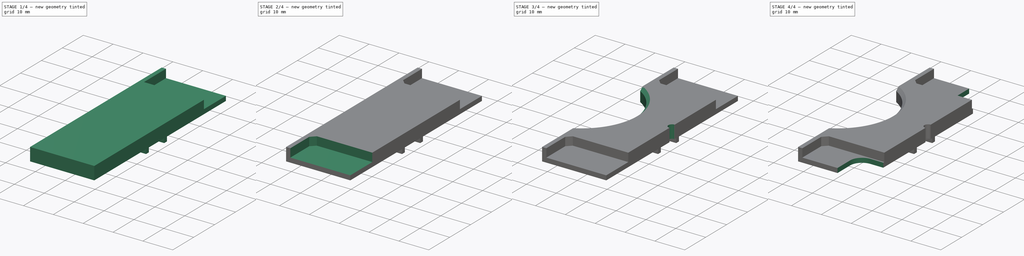
[diagram: build sequence overview — one tinted view per stage of 4, left to right]
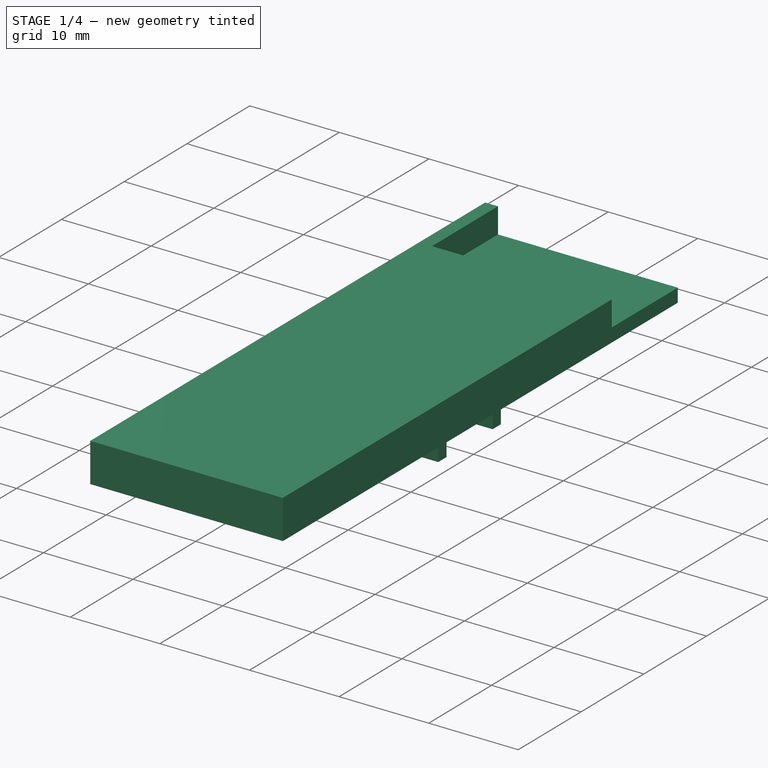
[diagram: stage 1 of 4 — iso view after this stage's code; geometry added in this stage tinted green]
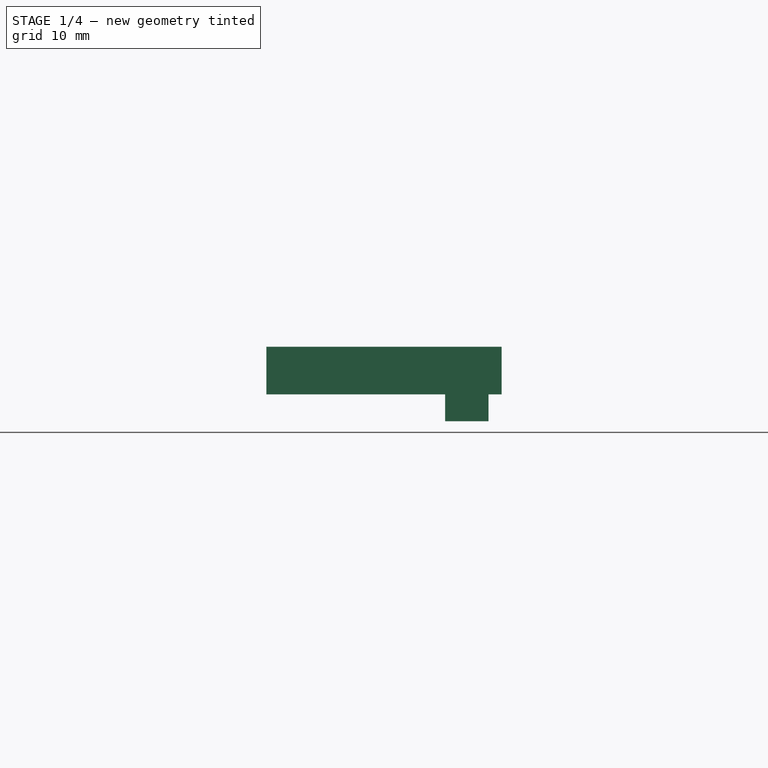
[diagram: stage 1 of 4 — front view after this stage's code; geometry added in this stage tinted green]
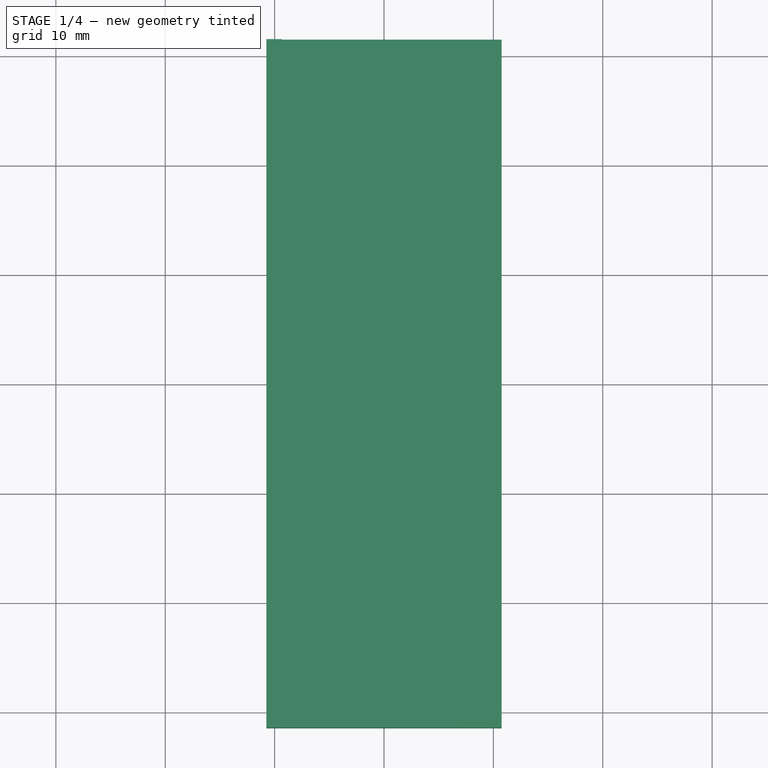
[diagram: stage 1 of 4 — top view after this stage's code; geometry added in this stage tinted green]
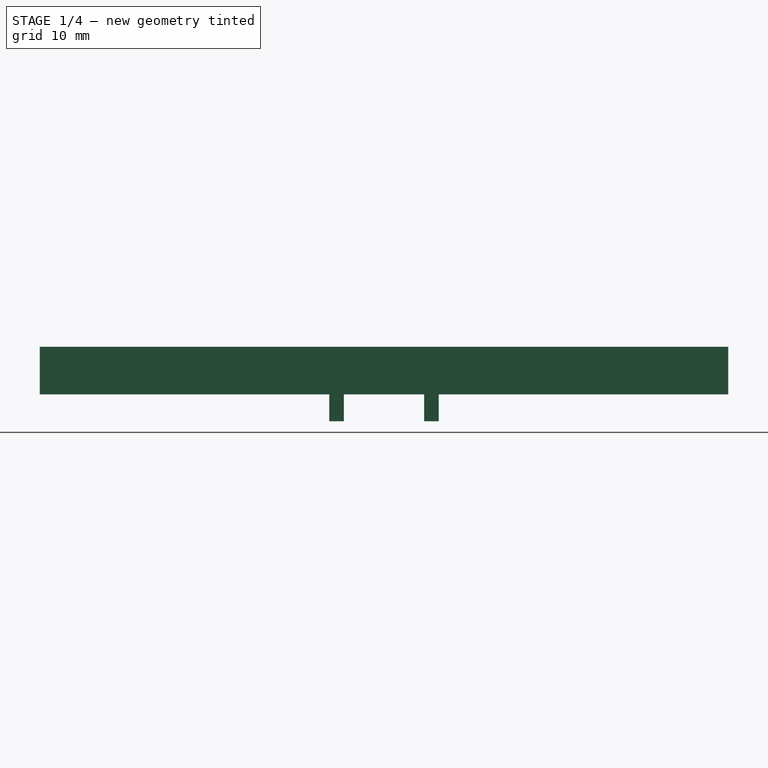
[diagram: stage 1 of 4 — right view after this stage's code; geometry added in this stage tinted green]
FCSTD DOCUMENT  (FreeCAD 0.19R24291 (Git))
Label: F2-1
License: All rights reserved
LicenseURL: http://en.wikipedia.org/wiki/All_rights_reserved
objects: Sketcher::SketchObject×6, PartDesign::Pocket×4, PartDesign::Mirrored×3, PartDesign::Chamfer×3, PartDesign::Pad×2, PartDesign::Fillet×2, PartDesign::Body×1
note: 32 computed .brp shape members not serialized (recipe doc carries the construction recipe); baked Part::Feature solids carry a one-line shape summary decoded from their .brp

FEATURE [Sketcher::SketchObject] Sketch
  FullyConstrained = true
  MapMode = 5
  Support = -> [XY_Plane]
  sketch-geometry (4):
    g0: LineSegment StartX=-10.75 StartY=31.475 StartZ=0 EndX=10.75 EndY=31.475 EndZ=0
    g1: LineSegment StartX=10.75 StartY=31.475 StartZ=0 EndX=10.75 EndY=-31.475 EndZ=0
    g2: LineSegment StartX=10.75 StartY=-31.475 StartZ=0 EndX=-10.75 EndY=-31.475 EndZ=0
    g3: LineSegment StartX=-10.75 StartY=-31.475 StartZ=0 EndX=-10.75 EndY=31.475 EndZ=0
  constraints (10):
    c: Coincident(g0,g1)
    c: Coincident(g1,g2)
    c: Coincident(g2,g3)
    c: Coincident(g3,g0)
    c: Horizontal(g2)
    c: Vertical(g1)
    c: Symmetric(g0,g0,g-2)
    c: Symmetric(g0,g2,g-1)
    c: Distance(g1) = 62.95
    c: Distance(g0) = 21.5
FEATURE [PartDesign::Pad] Pad
  Direction = (1,1,1)
  Length = 4.36
  Length2 = 100
  Profile = -> Sketch
  Type = 0
FEATURE [Sketcher::SketchObject] Sketch001
  ExternalGeometry = -> [Pad]
  FullyConstrained = true
  MapMode = 5
  Support = -> [XY_Plane]
  sketch-geometry (4):
    g0: LineSegment StartX=5.59 StartY=5 StartZ=0 EndX=9.55 EndY=5 EndZ=0
    g1: LineSegment StartX=9.55 StartY=5 StartZ=0 EndX=9.55 EndY=3.67 EndZ=0
    g2: LineSegment StartX=9.55 StartY=3.67 StartZ=0 EndX=5.59 EndY=3.67 EndZ=0
    g3: LineSegment StartX=5.59 StartY=3.67 StartZ=0 EndX=5.59 EndY=5 EndZ=0
  constraints (12):
    c: Coincident(g0,g1)
    c: Coincident(g1,g2)
    c: Coincident(g2,g3)
    c: Coincident(g3,g0)
    c: Horizontal(g0)
    c: Horizontal(g2)
    c: Vertical(g1)
    c: Vertical(g3)
    c: Distance(g2) = 3.96
    c: Distance(g1) = 1.33
    c: DistanceY(g-1,g0) = 5
    c: Distance(g0,g-3) = 1.2
FEATURE [PartDesign::Pad] Pad001
  BaseFeature = -> Pad
  Direction = (1,1,1)
  Length = 2.46
  Length2 = 100
  Profile = -> Sketch001
  Reversed = true
  Type = 0
FEATURE [PartDesign::Mirrored] Mirrored
  BaseFeature = -> Pad001
  MirrorPlane = -> Sketch001 [H_Axis]
  Originals = -> [Pad001]
FEATURE [Sketcher::SketchObject] Sketch002
  ExternalGeometry = -> [Mirrored]
  FullyConstrained = false
  MapMode = 5
  Placement = pos=(0,0,4.36) rot=(0,0,1;0rad)
  Support = -> [Mirrored]
  sketch-geometry (4):
    g0: LineSegment StartX=-9.32 StartY=36.2903 StartZ=0 EndX=31.0862 EndY=36.2903 EndZ=0
    g1: LineSegment StartX=31.0862 StartY=36.2903 StartZ=0 EndX=31.0862 EndY=20.95 EndZ=0
    g2: LineSegment StartX=31.0862 StartY=20.95 StartZ=0 EndX=-9.32 EndY=20.95 EndZ=0
    g3: LineSegment StartX=-9.32 StartY=20.95 StartZ=0 EndX=-9.32 EndY=36.2903 EndZ=0
  constraints (10):
    c: Coincident(g0,g1)
    c: Coincident(g1,g2)
    c: Coincident(g2,g3)
    c: Coincident(g3,g0)
    c: Horizontal(g0)
    c: Horizontal(g2)
    c: Vertical(g1)
    c: Vertical(g3)
    c: Distance(g0,g-3) = 1.43
    c: Distance(g1,g-4) = 10.525
FEATURE [PartDesign::Pocket] Pocket
  BaseFeature = -> Mirrored
  Length = 2.84
  Length2 = 100
  Profile = -> Sketch002
  Type = 0
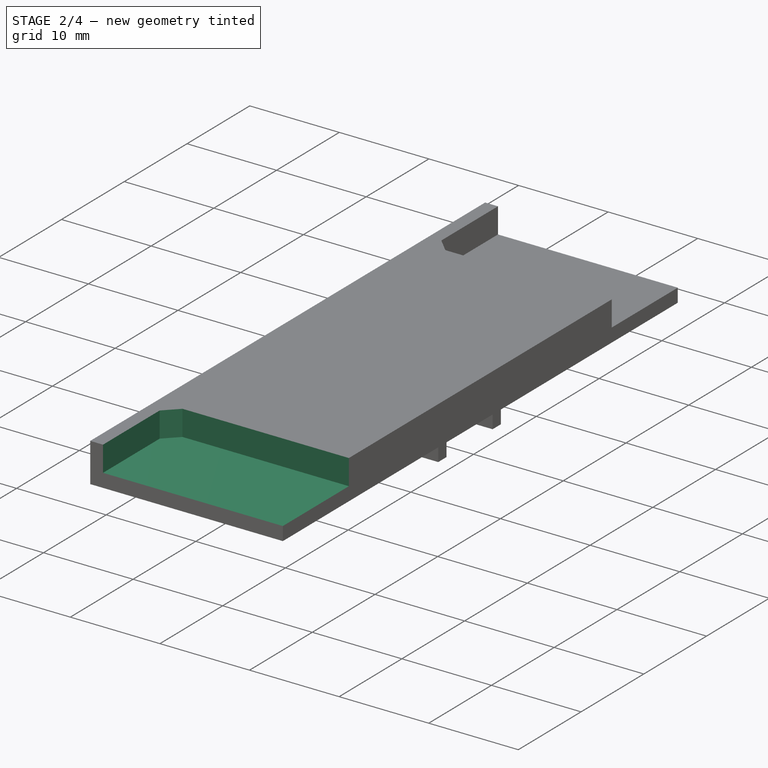
[diagram: stage 2 of 4 — iso view after this stage's code; geometry added in this stage tinted green]
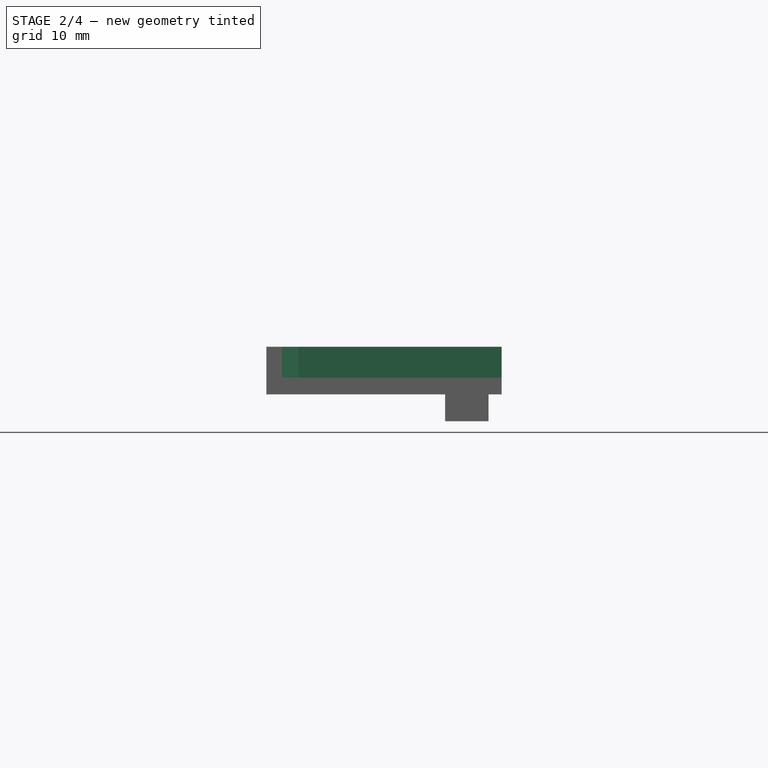
[diagram: stage 2 of 4 — front view after this stage's code; geometry added in this stage tinted green]
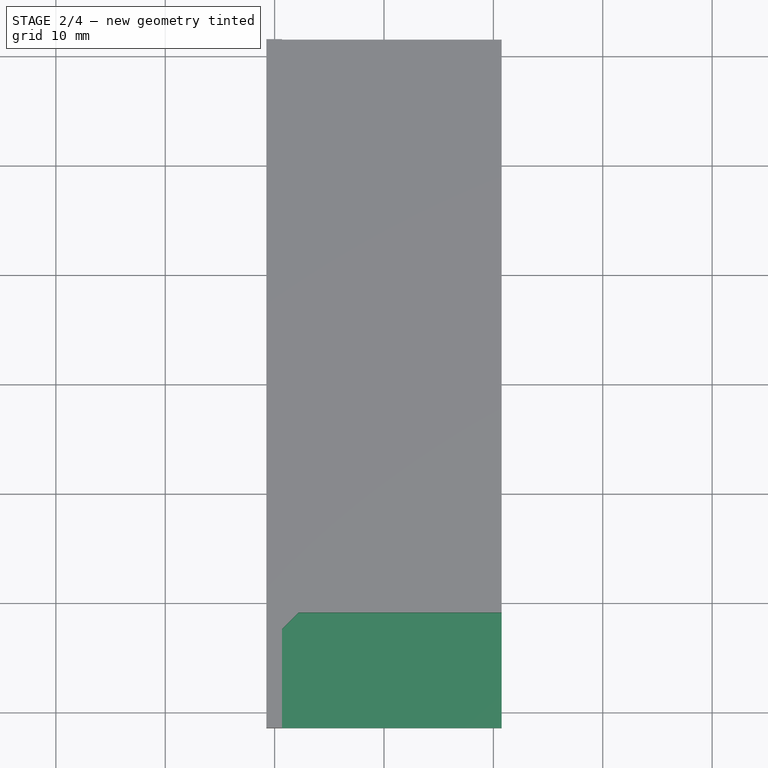
[diagram: stage 2 of 4 — top view after this stage's code; geometry added in this stage tinted green]
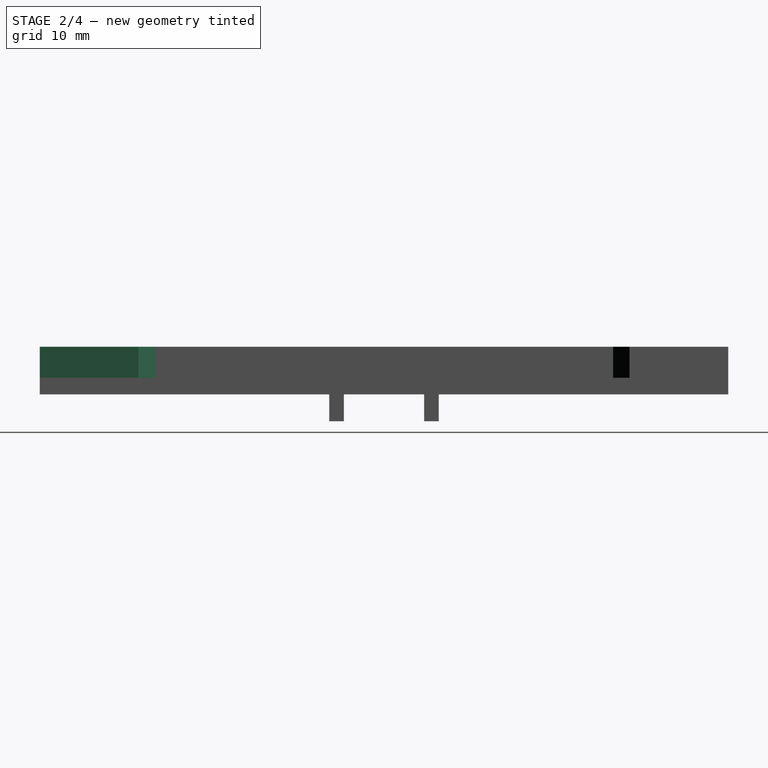
[diagram: stage 2 of 4 — right view after this stage's code; geometry added in this stage tinted green]
FEATURE [PartDesign::Chamfer] Chamfer
  Angle = 45
  Base = -> Pocket [Edge25]
  BaseFeature = -> Pocket
  ChamferType = 0
  FlipDirection = false
  Size = 1.5
  Size2 = 1
  SupportTransform = false
FEATURE [PartDesign::Mirrored] Mirrored001
  BaseFeature = -> Chamfer
  MirrorPlane = -> Sketch002 [H_Axis]
  Originals = -> [Pocket]
FEATURE [PartDesign::Chamfer] Chamfer001
  Angle = 45
  Base = -> Mirrored001 [Edge41]
  BaseFeature = -> Mirrored001
  ChamferType = 0
  FlipDirection = false
  Size = 1.5
  Size2 = 1
  SupportTransform = false
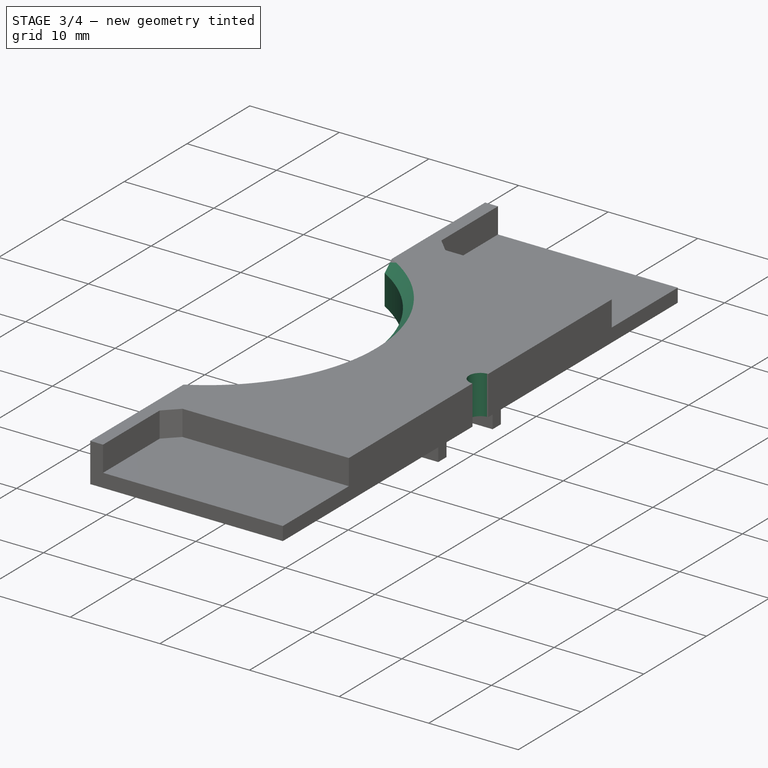
[diagram: stage 3 of 4 — iso view after this stage's code; geometry added in this stage tinted green]
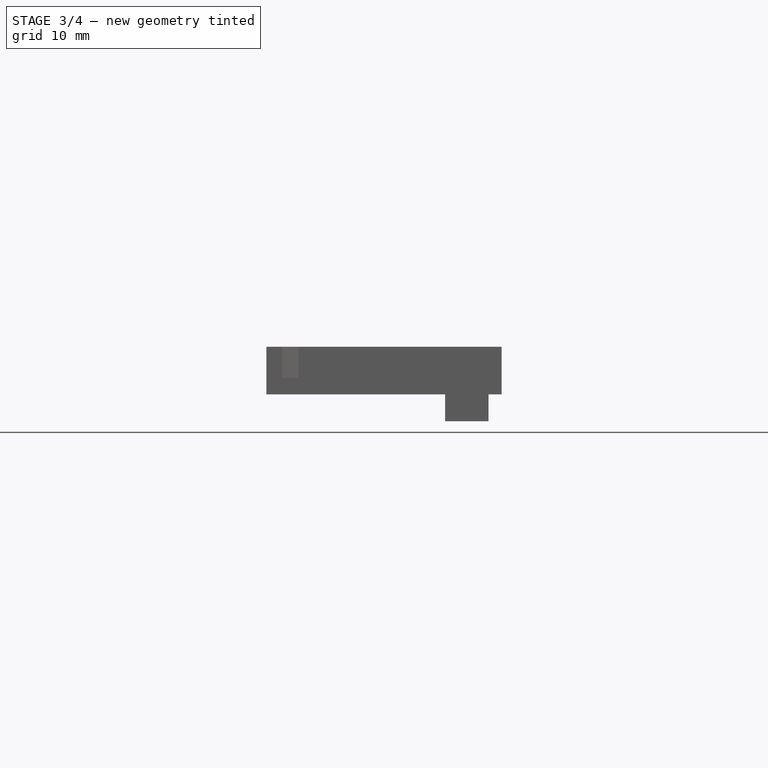
[diagram: stage 3 of 4 — front view after this stage's code; geometry added in this stage tinted green]
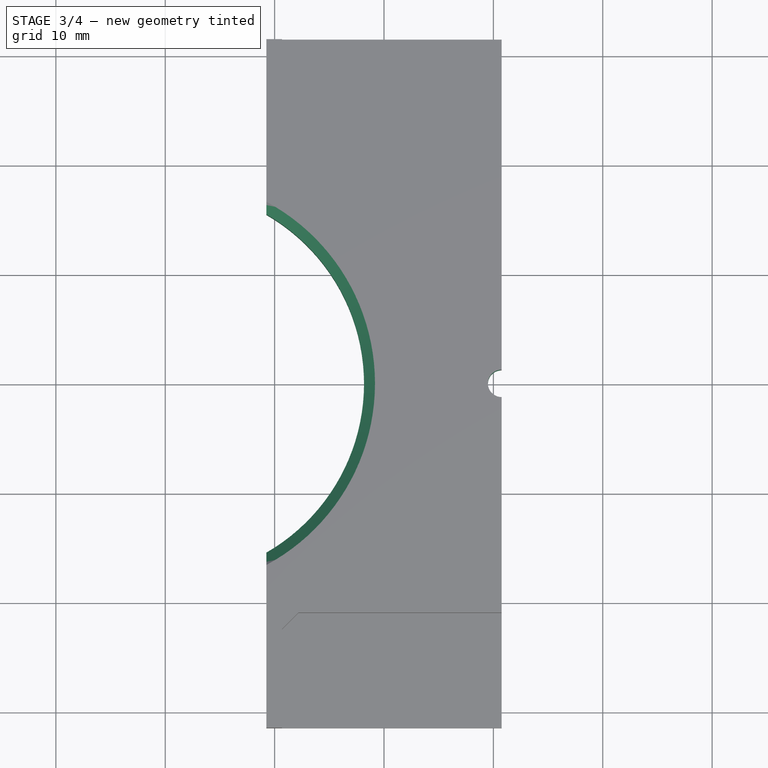
[diagram: stage 3 of 4 — top view after this stage's code; geometry added in this stage tinted green]
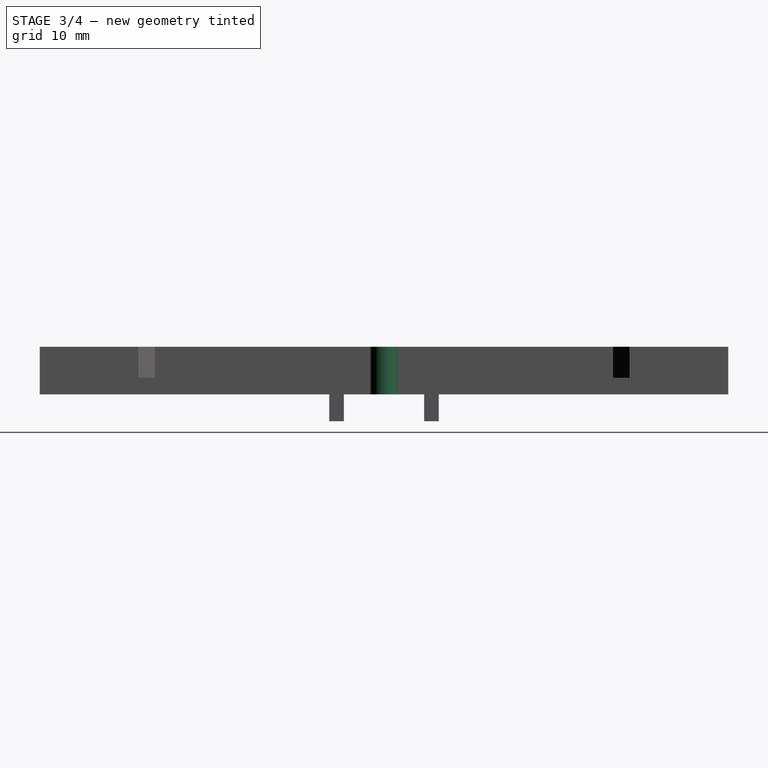
[diagram: stage 3 of 4 — right view after this stage's code; geometry added in this stage tinted green]
FEATURE [Sketcher::SketchObject] Sketch003
  ExternalGeometry = -> [Chamfer001]
  FullyConstrained = true
  MapMode = 5
  Placement = pos=(0,0,4.36) rot=(0,0,1;0rad)
  Support = -> [Chamfer001]
  sketch-geometry (1):
    g0: Circle CenterX=10.75 CenterY=0 CenterZ=0 NormalX=0 NormalY=0 NormalZ=1 AngleXU=0 Radius=1.25
  constraints (3):
    c: PointOnObject(g0,g-1)
    c: Radius(g0) = 1.25
    c: PointOnObject(g0,g-3)
FEATURE [PartDesign::Pocket] Pocket001
  BaseFeature = -> Chamfer001
  Length = 5
  Length2 = 100
  Profile = -> Sketch003
  Type = 1
FEATURE [Sketcher::SketchObject] Sketch004
  ExternalGeometry = -> [Pocket001]
  FullyConstrained = true
  MapMode = 5
  Placement = pos=(0,0,4.36) rot=(0,0,1;0rad)
  Support = -> [Pocket001]
  sketch-geometry (1):
    g0: Circle CenterX=-19.675 CenterY=0 CenterZ=0 NormalX=0 NormalY=0 NormalZ=1 AngleXU=0 Radius=17.85
  constraints (3):
    c: PointOnObject(g0,g-1)
    c: Radius(g0) = 17.85
    c: Distance(g0,g-3) = 8.925
FEATURE [PartDesign::Pocket] Pocket002
  BaseFeature = -> Pocket001
  Length = 5
  Length2 = 100
  Profile = -> Sketch004
  Type = 0
FEATURE [PartDesign::Chamfer] Chamfer002
  Angle = 45
  Base = -> Pocket002 [Edge10,Edge11]
  BaseFeature = -> Pocket002
  ChamferType = 0
  FlipDirection = false
  Size = 1
  Size2 = 1
  SupportTransform = false
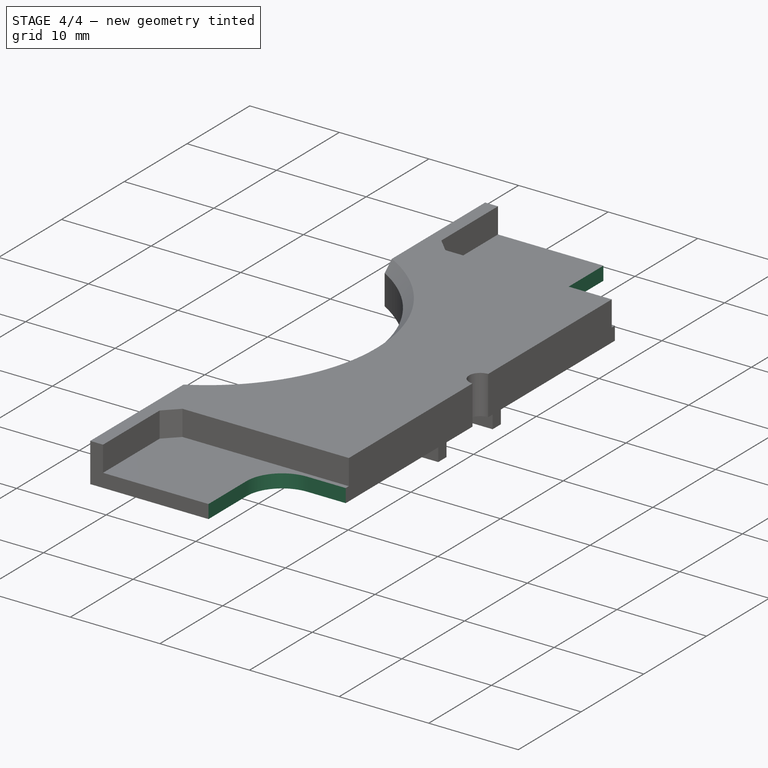
[diagram: stage 4 of 4 — iso view after this stage's code; geometry added in this stage tinted green]
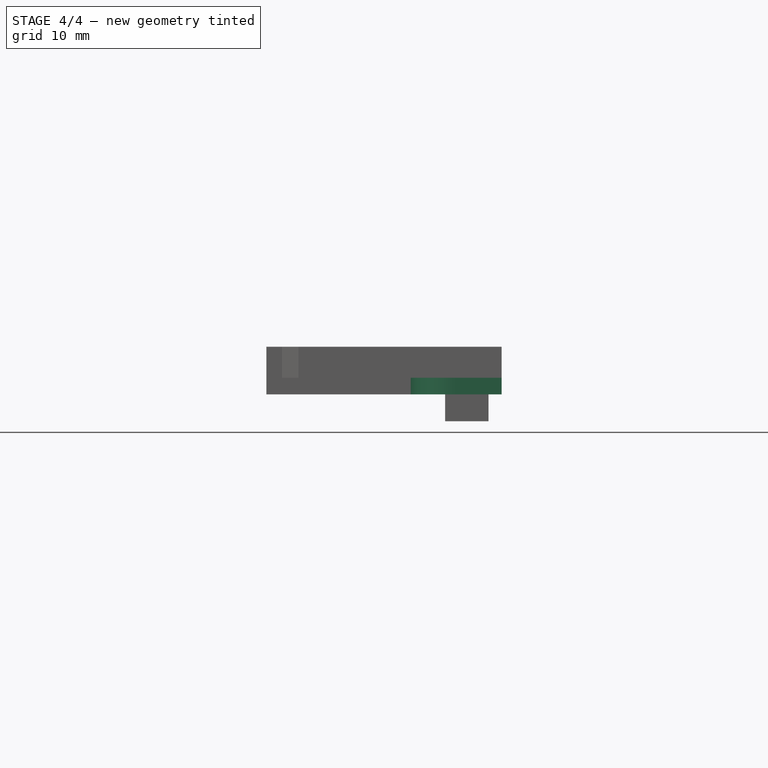
[diagram: stage 4 of 4 — front view after this stage's code; geometry added in this stage tinted green]
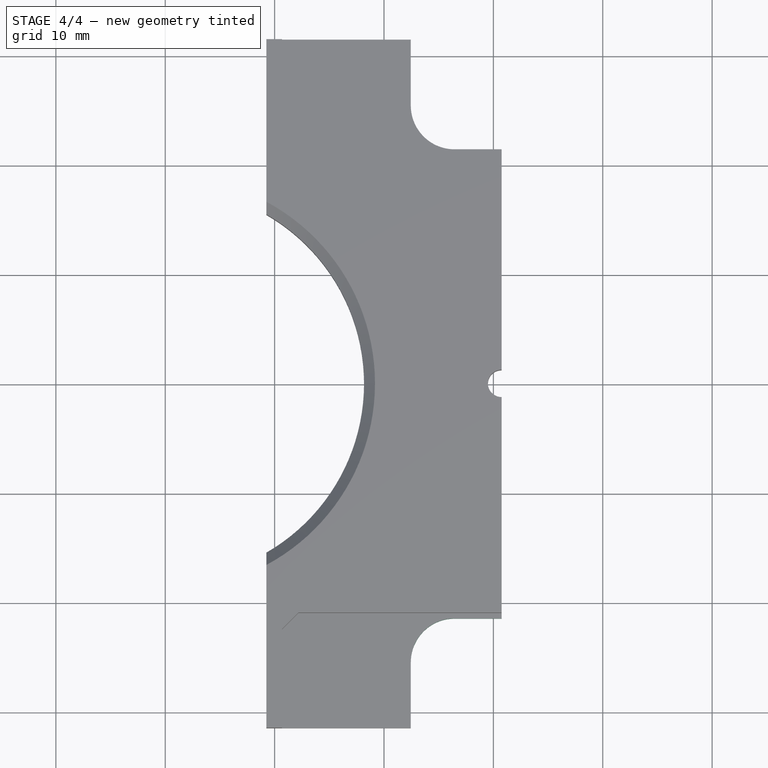
[diagram: stage 4 of 4 — top view after this stage's code; geometry added in this stage tinted green]
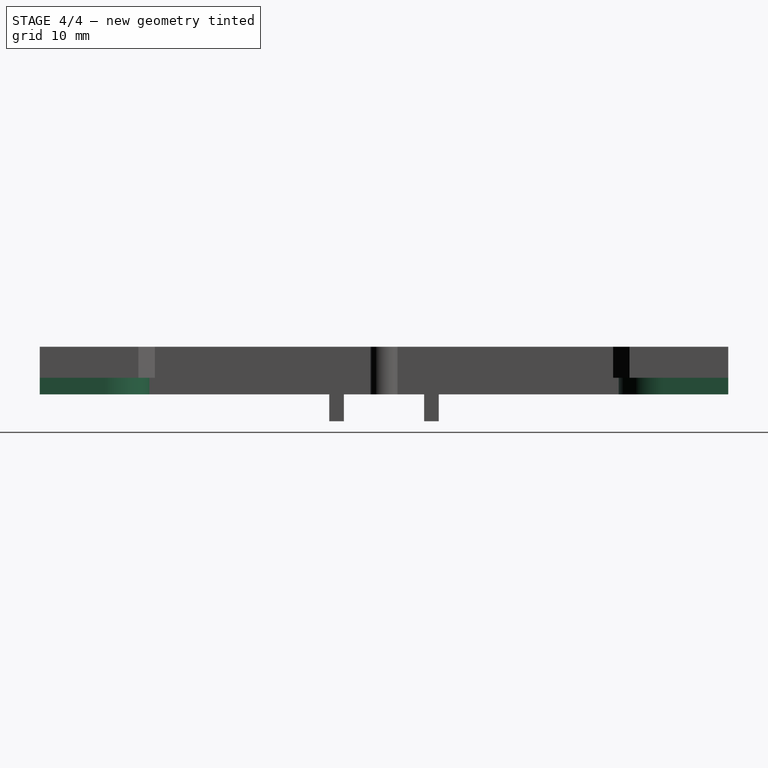
[diagram: stage 4 of 4 — right view after this stage's code; geometry added in this stage tinted green]
FEATURE [Sketcher::SketchObject] Sketch005
  ExternalGeometry = -> [Chamfer002]
  FullyConstrained = false
  MapMode = 5
  Placement = pos=(0,0,1.52) rot=(0,0,1;0rad)
  Support = -> [Chamfer002]
  sketch-geometry (4):
    g0: LineSegment StartX=2.45 StartY=36.3201 StartZ=0 EndX=29.1157 EndY=36.3201 EndZ=0
    g1: LineSegment StartX=29.1157 StartY=36.3201 StartZ=0 EndX=29.1157 EndY=21.45 EndZ=0
    g2: LineSegment StartX=29.1157 StartY=21.45 StartZ=0 EndX=2.45 EndY=21.45 EndZ=0
    g3: LineSegment StartX=2.45 StartY=21.45 StartZ=0 EndX=2.45 EndY=36.3201 EndZ=0
  constraints (10):
    c: Coincident(g0,g1)
    c: Coincident(g1,g2)
    c: Coincident(g2,g3)
    c: Coincident(g3,g0)
    c: Horizontal(g0)
    c: Horizontal(g2)
    c: Vertical(g1)
    c: Vertical(g3)
    c: Distance(g0,g-3) = 13.2
    c: Distance(g1,g-4) = 0.5
FEATURE [PartDesign::Pocket] Pocket003
  BaseFeature = -> Chamfer002
  Length = 5
  Length2 = 100
  Profile = -> Sketch005
  Type = 0
FEATURE [PartDesign::Fillet] Fillet
  Base = -> Pocket003 [Edge69]
  BaseFeature = -> Pocket003
  Radius = 4
  SupportTransform = false
FEATURE [PartDesign::Mirrored] Mirrored002
  BaseFeature = -> Fillet
  MirrorPlane = -> Sketch005 [H_Axis]
  Originals = -> [Pocket003]
FEATURE [PartDesign::Fillet] Fillet001
  Base = -> Mirrored002 [Edge47]
  BaseFeature = -> Mirrored002
  Radius = 4
  SupportTransform = false
FEATURE [PartDesign::Body] Body
  Group = -> [Sketch,Pad,Sketch001,Pad001,Mirrored,Sketch002,Pocket,Chamfer,Mirrored001,Chamfer001,Sketch003,Pocket001,Sketch004,Pocket002,Chamfer002,Sketch005,Pocket003,Fillet,Mirrored002,Fillet001]
  Origin = -> Origin
  Tip = -> Fillet001
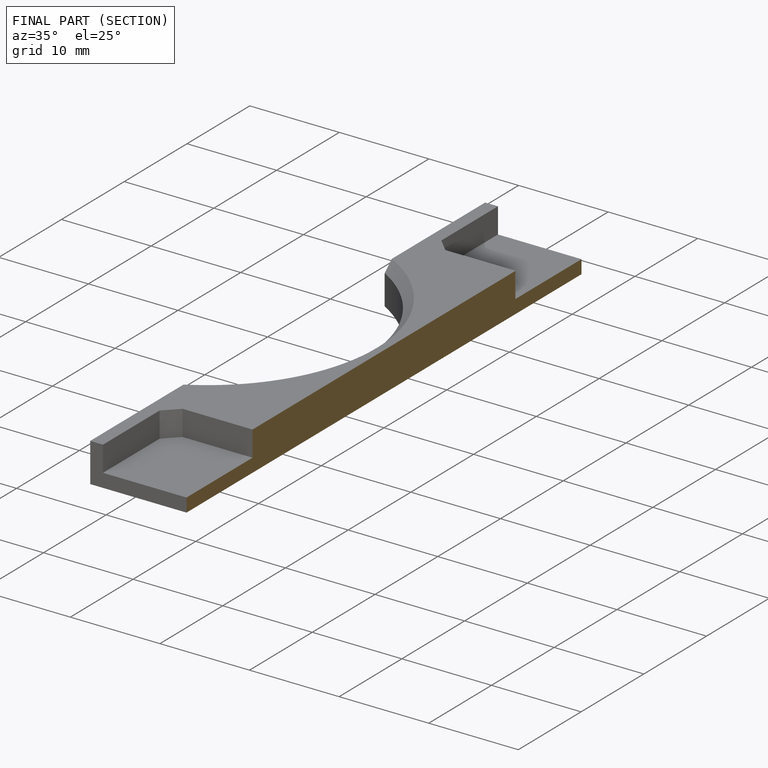
[diagram: finished part — half-section view (interior)]
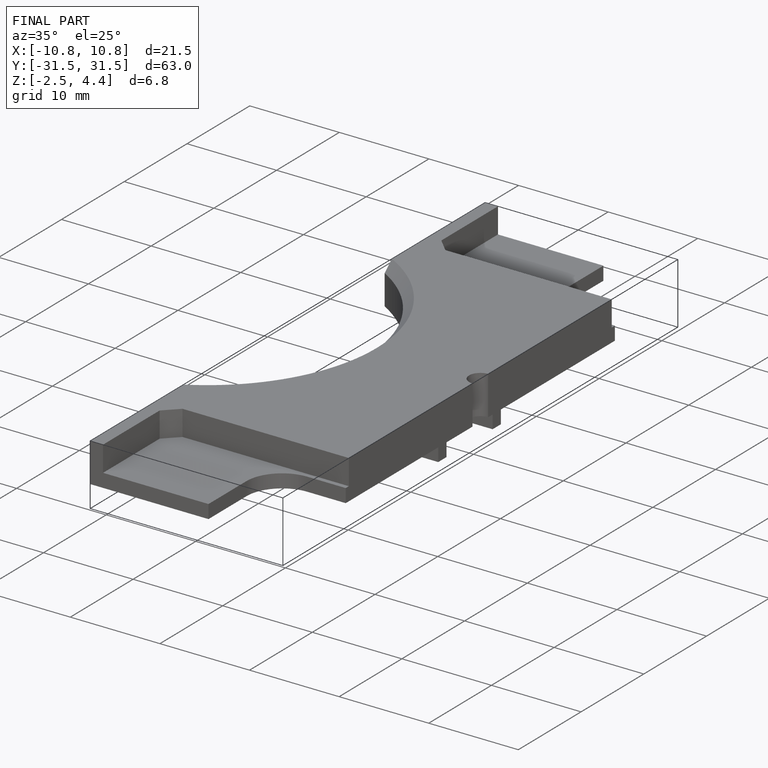
[diagram: finished part — iso view with bounding-box wireframe]
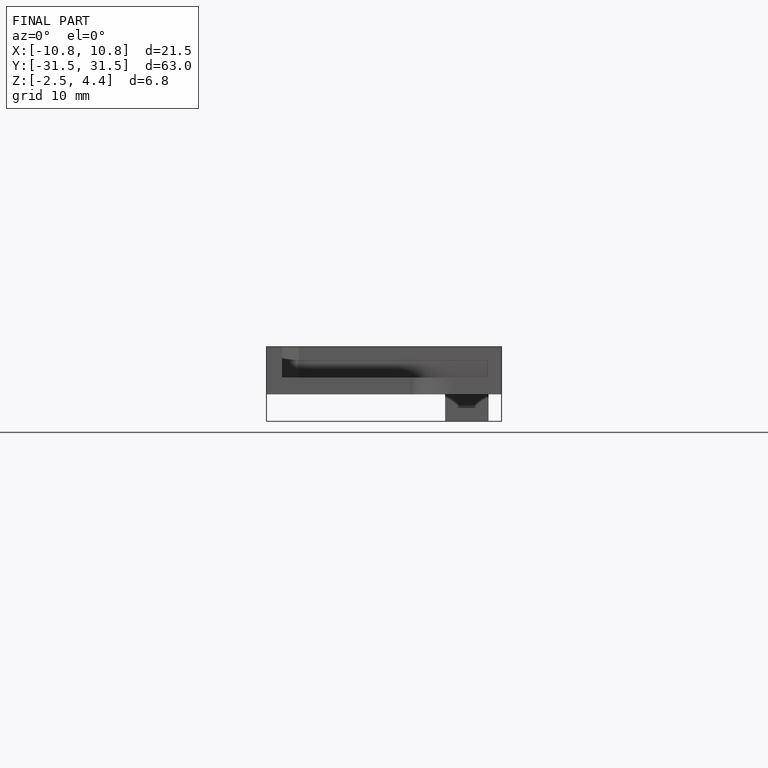
[diagram: finished part — front view with bounding-box wireframe]
